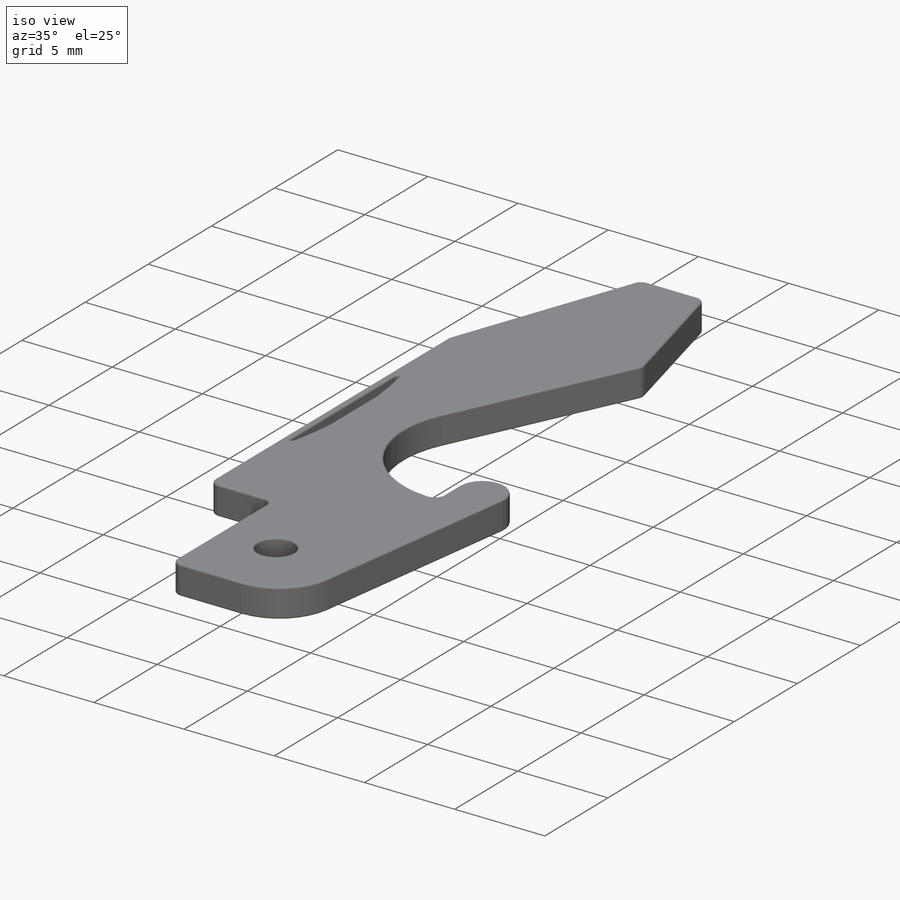
[diagram: iso view]
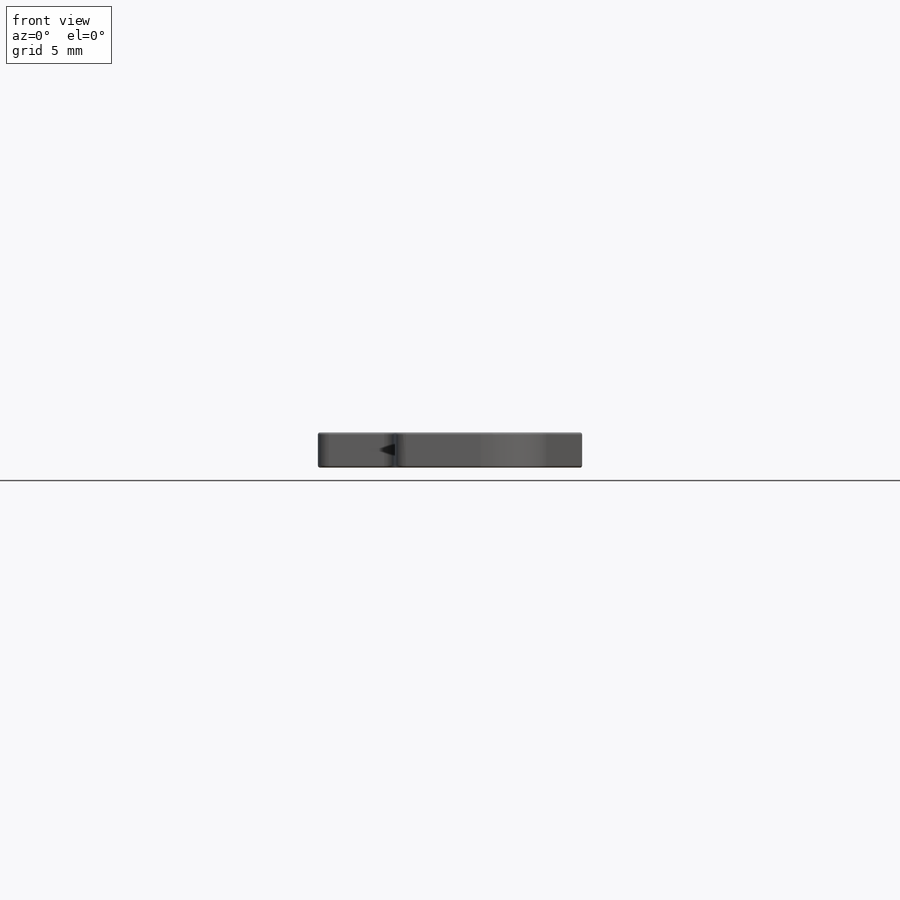
[diagram: front view]
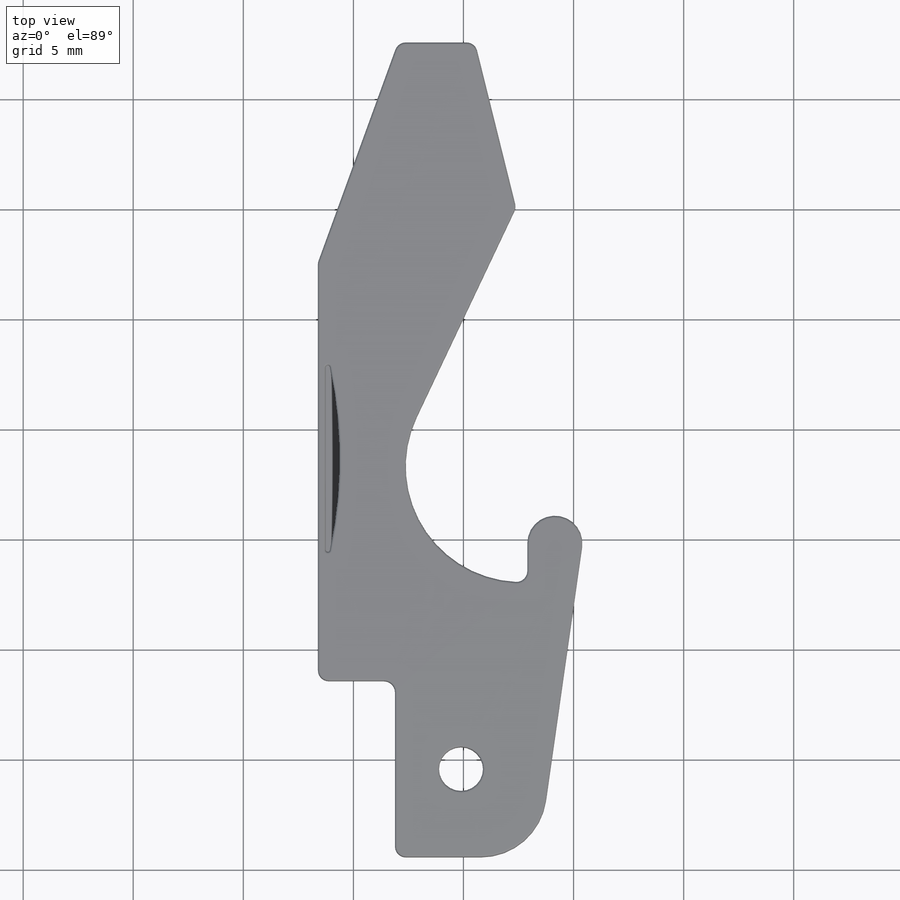
[diagram: top view]
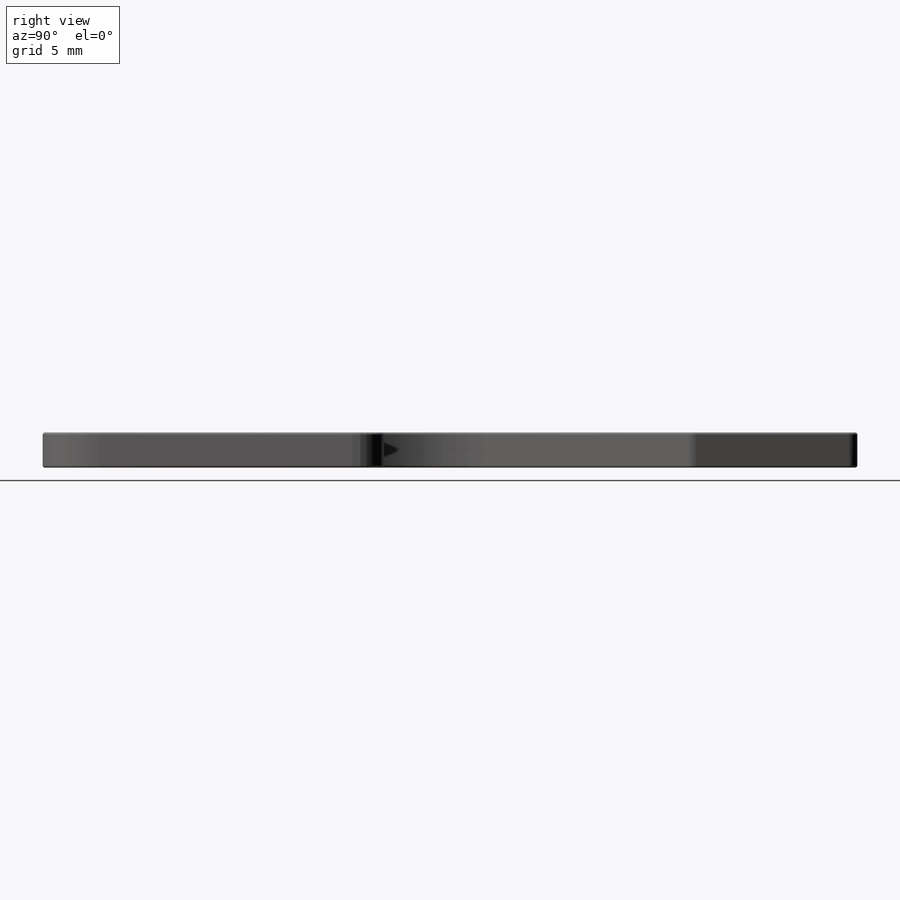
[diagram: right view]
SOLIDWORKS PART (.sldprt)
format: sldprt  version: not decoded by parser v0  size: 372,736 bytes
history: native  units: mm
features: fillet x7, sketch x3, cut_extrude x2, material x1, extrude x1 (+11 scaffold rows collapsed)
feature tree (25):
  scaffold x11  (default folders/planes/origin — collapsed)
  material  "Material <not specified>"
  sketch  "Sketch1"  dims[D10=1.25mm D11=5.26mm D1=37.0mm D2=12.0mm D3=10.0mm D4=3.5mm D5=~3.637961mm D6=10.0mm D7=7.5mm D8=9.5mm D9=22.75mm D12=9.25mm D13=9.0mm]
  extrude  "Boss-Extrude1"  Depth=1.6mm
  fillet  "Fillet1"  Radius=3mm
  sketch  "Sketch2"  dims[D3=2.0mm D1=8.0mm D2=3.5mm D4=4.0mm D5=3.0mm]
  cut_extrude  "Cut-Extrude3"  [1 undecoded]
  fillet  "Fillet2"  Radius=0.5mm
  fillet  "Fillet4"  Radius=0.1mm
  fillet  "Fillet5"  Radius=0.1mm
  sketch  "Sketch4"  dims[D3=20.0mm D1=10.0mm D2=5.0mm D4=0.25mm]
  cut_extrude  "Cut-Extrude6"  Depth=0.5mm
  fillet  "Fillet7"  Radius=0.1mm
  fillet  "Fillet8"  Radius=0.1mm
  fillet  "Fillet9"  Radius=0.1mm
decode coverage: 12 of 13 modeling features carry decoded parameters
note: ~ marks probable driven/reference dimensions
note: 1 parameter value undecoded
note: suppression state not decoded; provenance and decode notes live in map.json
